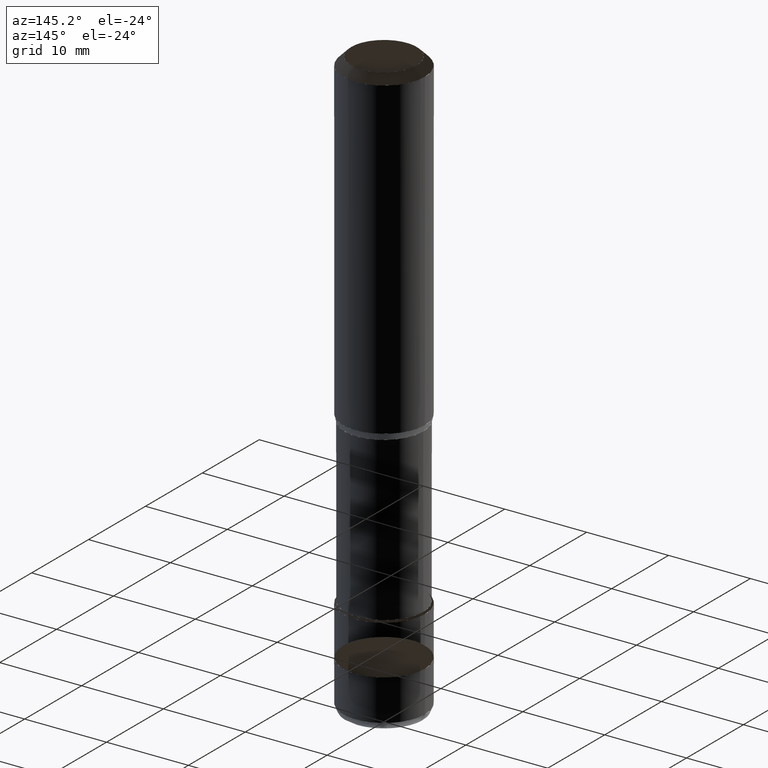
[diagram: clean part render]
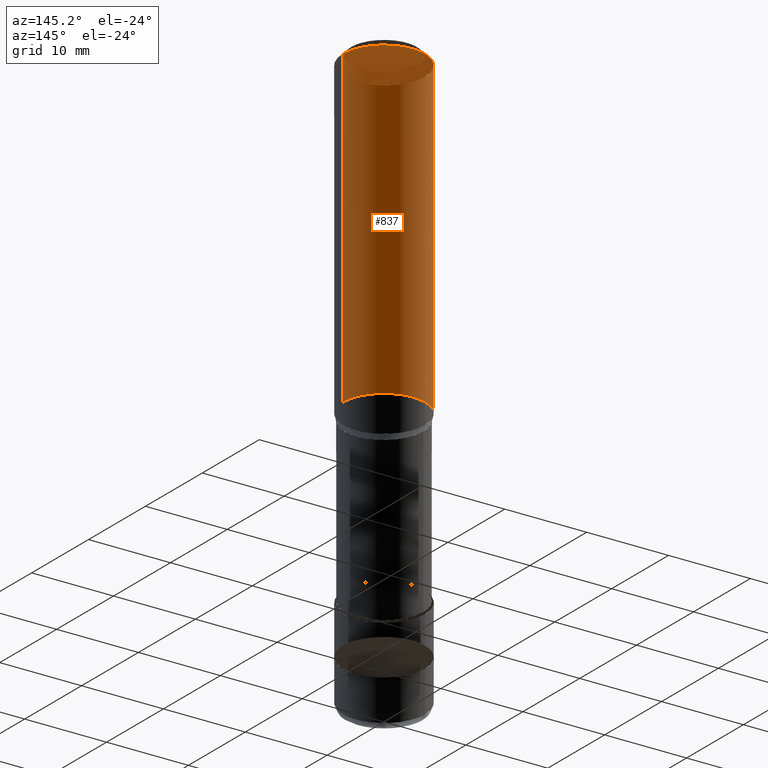
[diagram: same view with one face highlighted and labeled with its STEP entity id]
A machine part, auxiliary view. The second image highlights one B-rep face of the part: STEP entity #837.
In plain terms, the highlighted face is a freeform B-spline surface patch.
Its self-contained STEP definition (entity closure, byte-faithful):
#533=CARTESIAN_POINT('',(5.0,0.0,0.0));
#534=CARTESIAN_POINT('',(5.0,5.0,0.0));
#535=CARTESIAN_POINT('',(0.0,5.0,0.0));
#536=CARTESIAN_POINT('',(-5.0,5.0,0.0));
#537=CARTESIAN_POINT('',(-5.0,0.0,0.0));
#538=CARTESIAN_POINT('',(5.0,0.0,38.253589838486));
#539=CARTESIAN_POINT('',(5.0,5.0,38.253589838486));
#540=CARTESIAN_POINT('',(0.0,5.0,38.253589838486));
#541=CARTESIAN_POINT('',(-5.0,5.0,38.253589838486));
#542=CARTESIAN_POINT('',(-5.0,0.0,38.253589838486));
#818=(
BOUNDED_SURFACE()
B_SPLINE_SURFACE(1,2,(
(#533,#534,#535,#536,#537),
(#538,#539,#540,#541,#542)
), .UNSPECIFIED.,.F.,.F.,.F.)
B_SPLINE_SURFACE_WITH_KNOTS((2,2),(3,2,3),(
0.0,1.0),(
0.0,0.5,1.0), .UNSPECIFIED.)
GEOMETRIC_REPRESENTATION_ITEM()
RATIONAL_B_SPLINE_SURFACE(((1.0,0.707106781187,1.0,0.707106781187,1.0),
(1.0,0.707106781187,1.0,0.707106781187,1.0)
))
REPRESENTATION_ITEM('')
SURFACE()
);
#819=(
BOUNDED_CURVE()
B_SPLINE_CURVE(2,(#537,#536,#535,#534,#533),.UNSPECIFIED.,.F.,.F.)
B_SPLINE_CURVE_WITH_KNOTS((3,2,3),
(0.0,0.5,1.0),.UNSPECIFIED.)
CURVE()
GEOMETRIC_REPRESENTATION_ITEM()
RATIONAL_B_SPLINE_CURVE((1.0,0.707106781187,1.0,0.707106781187,1.0))
REPRESENTATION_ITEM('')
);
#820=(
BOUNDED_CURVE()
B_SPLINE_CURVE(1,(#533,#538),.UNSPECIFIED.,.F.,.F.)
B_SPLINE_CURVE_WITH_KNOTS((2,2),
(0.0,1.0),.UNSPECIFIED.)
CURVE()
GEOMETRIC_REPRESENTATION_ITEM()
RATIONAL_B_SPLINE_CURVE((1.0,1.0))
REPRESENTATION_ITEM('')
);
#821=(
BOUNDED_CURVE()
B_SPLINE_CURVE(2,(#538,#539,#540,#541,#542),.UNSPECIFIED.,.F.,.F.)
B_SPLINE_CURVE_WITH_KNOTS((3,2,3),
(0.0,0.5,1.0),.UNSPECIFIED.)
CURVE()
GEOMETRIC_REPRESENTATION_ITEM()
RATIONAL_B_SPLINE_CURVE((1.0,0.707106781187,1.0,0.707106781187,1.0))
REPRESENTATION_ITEM('')
);
#822=(
BOUNDED_CURVE()
B_SPLINE_CURVE(1,(#542,#537),.UNSPECIFIED.,.F.,.F.)
B_SPLINE_CURVE_WITH_KNOTS((2,2),
(0.0,1.0),.UNSPECIFIED.)
CURVE()
GEOMETRIC_REPRESENTATION_ITEM()
RATIONAL_B_SPLINE_CURVE((1.0,1.0))
REPRESENTATION_ITEM('')
);
#823=VERTEX_POINT('',#533);
#824=VERTEX_POINT('',#537);
#825=VERTEX_POINT('',#538);
#826=VERTEX_POINT('',#542);
#827=EDGE_CURVE('',#824,#823,#819,.T.);
#828=EDGE_CURVE('',#823,#825,#820,.T.);
#829=EDGE_CURVE('',#825,#826,#821,.T.);
#830=EDGE_CURVE('',#826,#824,#822,.T.);
#831=ORIENTED_EDGE('',*,*,#827,.T.);
#832=ORIENTED_EDGE('',*,*,#828,.T.);
#833=ORIENTED_EDGE('',*,*,#829,.T.);
#834=ORIENTED_EDGE('',*,*,#830,.T.);
#835=EDGE_LOOP('',(#831,#832,#833,#834));
#836=FACE_OUTER_BOUND('',#835,.T.);
#837=ADVANCED_FACE('',(#836),#818,.T.);